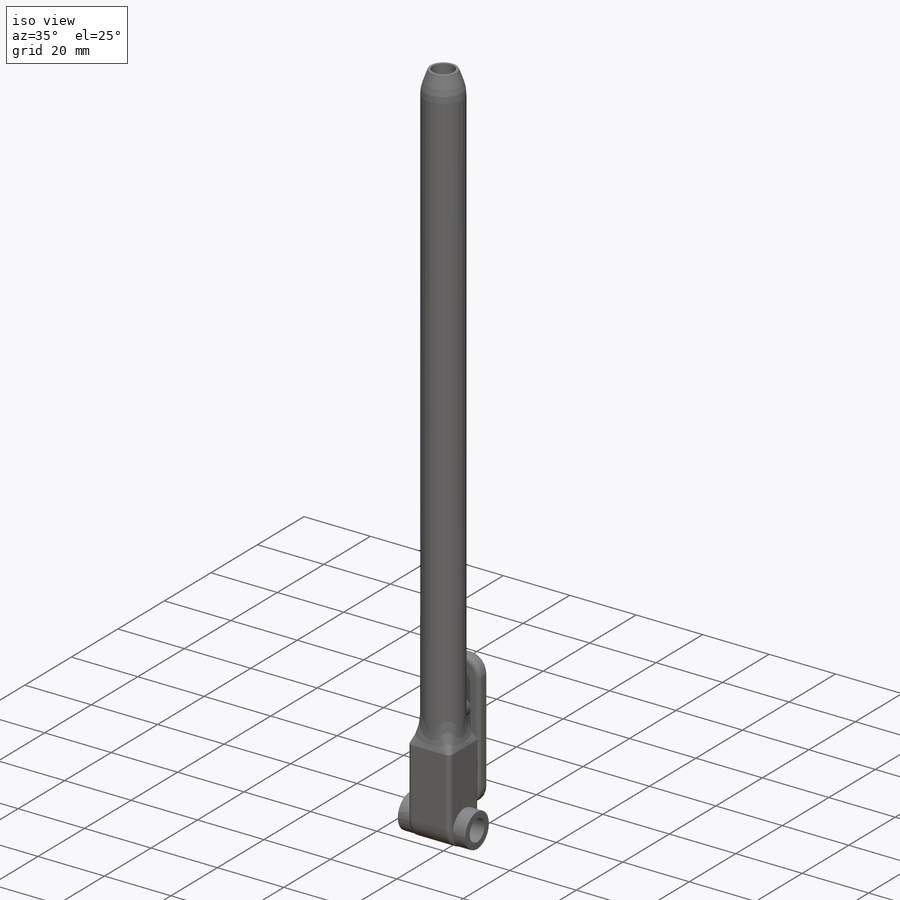
[diagram: iso view]
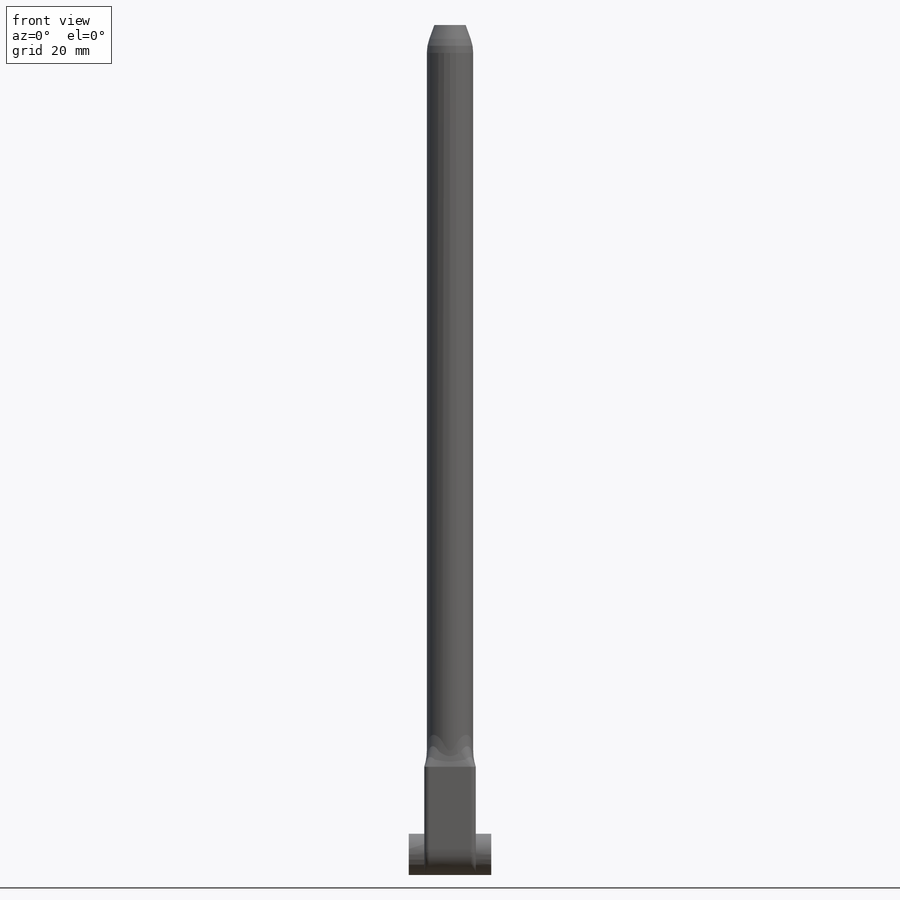
[diagram: front view]
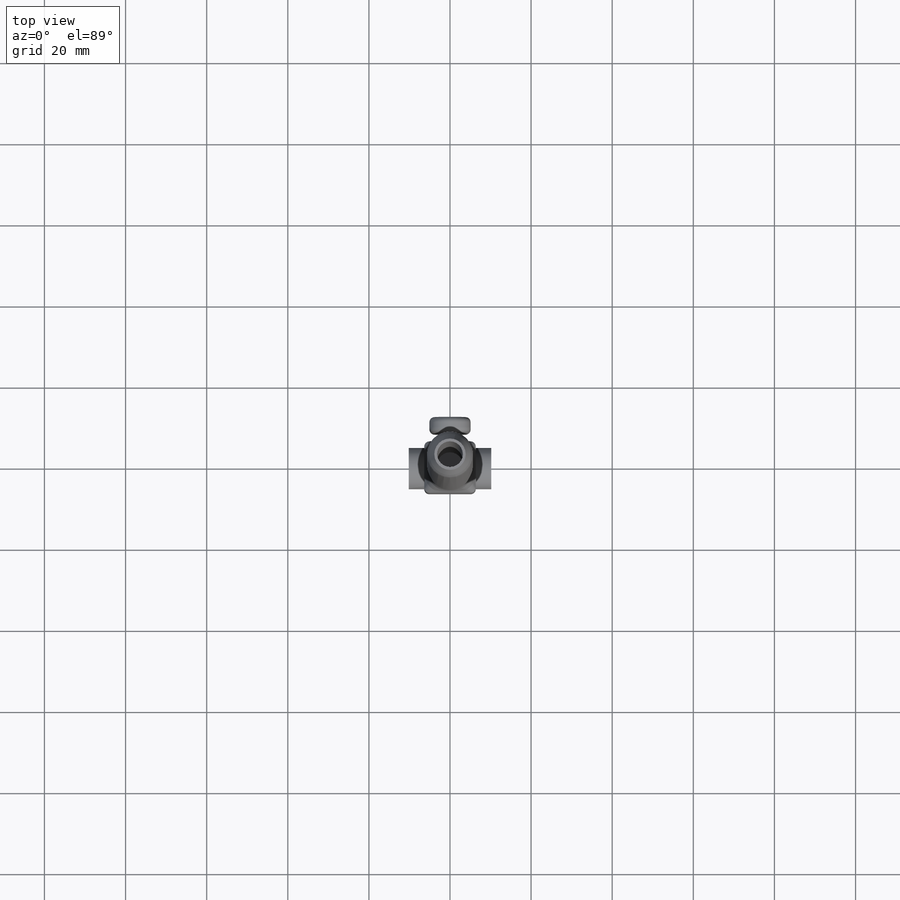
[diagram: top view]
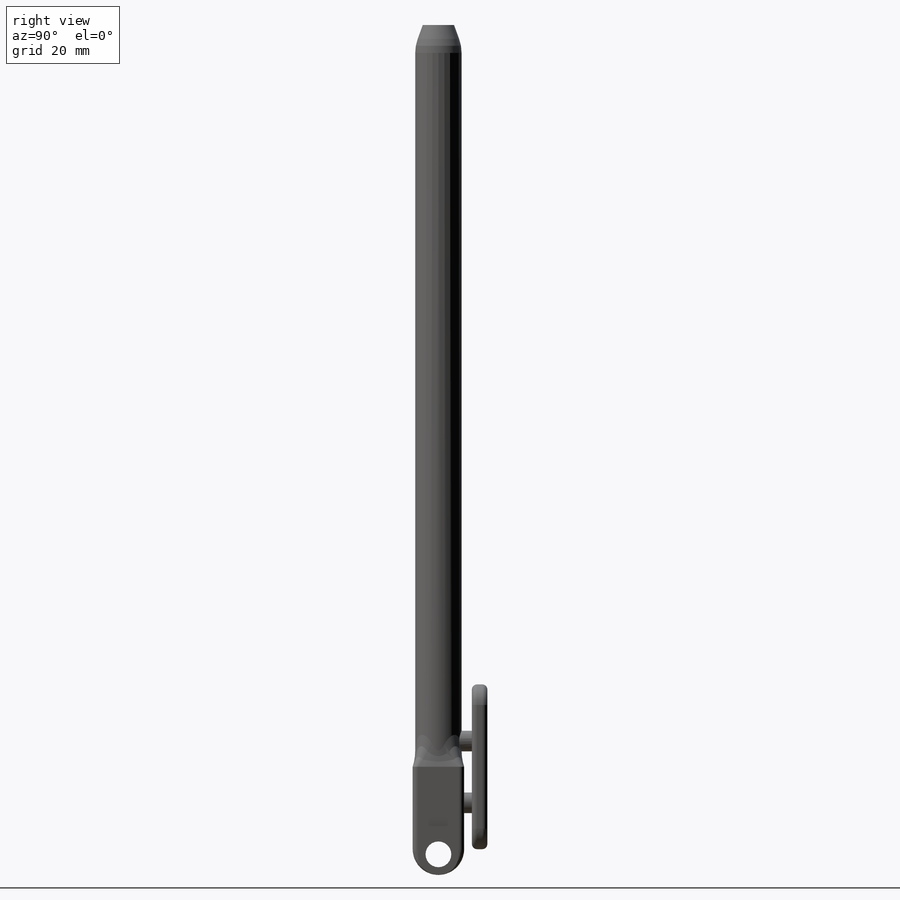
[diagram: right view]
SOLIDWORKS PART (.sldprt)
format: sldprt  version: not decoded by parser v0  size: 355,328 bytes
history: native  units: mm
features: sketch x7, extrude x5, fillet x4, cut_extrude x2, material x1, chamfer x1 (+13 scaffold rows collapsed)
feature tree (33):
  scaffold x13  (default folders/planes/origin — collapsed)
  material  "Material <not specified>"
  sketch  "Sketch1"  dims[D1=6.35mm D2=6.35mm D3=1.27mm D4=20.32mm]
  extrude  "Boss-Extrude1"  Depth=12.7mm
  sketch  "Sketch2"
  extrude  "Boss-Extrude2"  Depth=20.32mm
  fillet  "Fillet1"  Radius=1.27mm
  sketch  "Sketch3"  dims[D1=11.43mm]
  extrude  "Boss-Extrude3"  Depth=182.88mm
  chamfer  "Chamfer1"  Distance=5.08mm Angle=20deg
  fillet  "Fillet2"  Radius=10.16mm
  sketch  "Sketch4"  dims[D1=6.35mm]
  cut_extrude  "Cut-Extrude1"  Depth=154.94mm
  fillet  "Fillet3"  Radius=12.7mm
  sketch  "Sketch5"  dims[D3=5.08mm D1=12.7mm D2=15.24mm]
  extrude  "Boss-Extrude4"  Depth=3.81mm
  sketch  "Sketch6"  dims[D1=10.16mm D2=30.48mm]
  extrude  "Boss-Extrude5"  Depth=3.81mm
  fillet  "Fillet4"  Radius=1.27mm
  sketch  "Sketch7"  dims[D1=1.27mm]
  cut_extrude  "Cut-Extrude2"  Depth=1.27mm
decode coverage: 18 of 19 modeling features carry decoded parameters
note: suppression state not decoded; provenance and decode notes live in map.json
